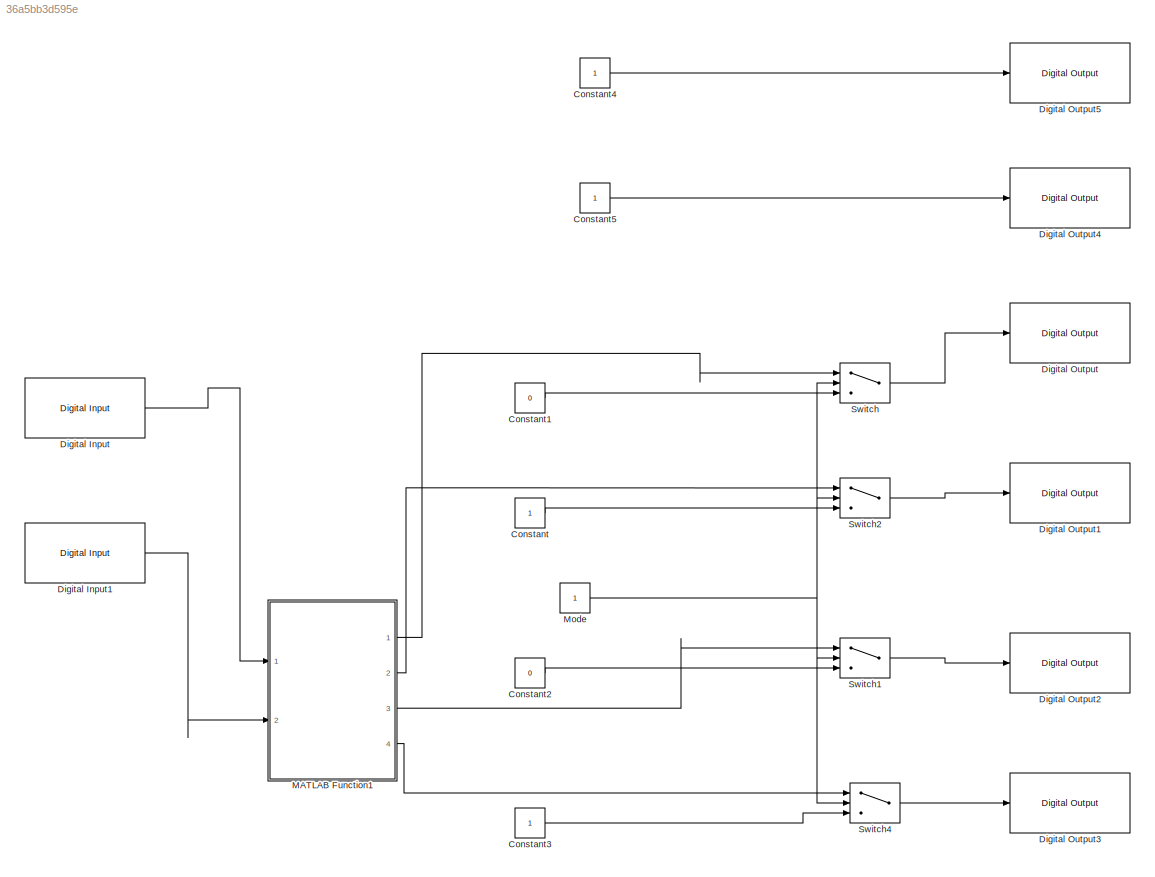
MODEL slx_36a5bb3d595e
KIND model
CONFIG AbsTol = auto
CONFIG FixedStep = 0.1
CONFIG MaxStep = auto
CONFIG MinStep = auto
CONFIG RelTol = 1e-3
CONFIG SampleTimeConstraint = Unconstrained
CONFIG Solver = FixedStepDiscrete
CONFIG SolverMode = Auto
CONFIG SolverName = FixedStepDiscrete
CONFIG StartTime = 0.0
CONFIG StopTime = inf
BLOCK [Constant] Constant
BLOCK [Constant] Constant1
  Value = 0
BLOCK [Constant] Constant2
  Value = 0
BLOCK [Constant] Constant3
BLOCK [Constant] Constant4
BLOCK [Constant] Constant5
BLOCK [Reference] Digital Input  REF=arduinolib/Digital Input
  Ports = [0, 1]
  SourceBlock = arduinolib/Digital Input
  SourceType = Arduino Digital Input
BLOCK [Reference] Digital Input1  REF=arduinolib/Digital Input
  Ports = [0, 1]
  SourceBlock = arduinolib/Digital Input
  SourceType = Arduino Digital Input
BLOCK [Reference] Digital Output  REF=arduinolib/Digital Output
  Ports = [1]
  SourceBlock = arduinolib/Digital Output
  SourceType = Arduino Digital Output
BLOCK [Reference] Digital Output1  REF=arduinolib/Digital Output
  Ports = [1]
  SourceBlock = arduinolib/Digital Output
  SourceType = Arduino Digital Output
BLOCK [Reference] Digital Output2  REF=arduinolib/Digital Output
  Ports = [1]
  SourceBlock = arduinolib/Digital Output
  SourceType = Arduino Digital Output
BLOCK [Reference] Digital Output3  REF=arduinolib/Digital Output
  Ports = [1]
  SourceBlock = arduinolib/Digital Output
  SourceType = Arduino Digital Output
BLOCK [Reference] Digital Output4  REF=arduinolib/Digital Output
  Ports = [1]
  SourceBlock = arduinolib/Digital Output
  SourceType = Arduino Digital Output
BLOCK [Reference] Digital Output5  REF=arduinolib/Digital Output
  Ports = [1]
  SourceBlock = arduinolib/Digital Output
  SourceType = Arduino Digital Output
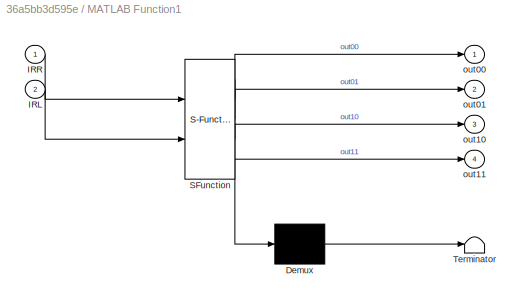
BLOCK [SubSystem] MATLAB Function1
  ErrorFcn = Stateflow.Translate.translate
  PermitHierarchicalResolution = ExplicitOnly
  Ports = [2, 4]
  RequestExecContextInheritance = off
  SFBlockType = MATLAB Function
  TreatAsAtomicUnit = on
  Variant = off
BLOCK [Demux] MATLAB Function1/ Demux 
  Outputs = 1
  Ports = [1, 1]
BLOCK [S-Function] MATLAB Function1/ SFunction 
  EnableBusSupport = on
  FunctionName = sf_sfun
  PortCounts = [2 5]
  Ports = [2, 5]
  SFunctionDeploymentMode = off
  Tag = Stateflow S-Function Project_MATLAB_diagram 1
BLOCK [Terminator] MATLAB Function1/ Terminator 
BLOCK [Inport] MATLAB Function1/IRL
  IconDisplay = Port number
  Port = 2
BLOCK [Inport] MATLAB Function1/IRR
  IconDisplay = Port number
BLOCK [Outport] MATLAB Function1/out00
  IconDisplay = Port number
BLOCK [Outport] MATLAB Function1/out01
  IconDisplay = Port number
  Port = 2
BLOCK [Outport] MATLAB Function1/out10
  IconDisplay = Port number
  Port = 3
BLOCK [Outport] MATLAB Function1/out11
  IconDisplay = Port number
  Port = 4
BLOCK [Constant] Mode
BLOCK [Switch] Switch
  Criteria = u2 ~= 0
  InputSameDT = off
  SaturateOnIntegerOverflow = off
BLOCK [Switch] Switch1
  Criteria = u2 ~= 0
  InputSameDT = off
  SaturateOnIntegerOverflow = off
BLOCK [Switch] Switch2
  Criteria = u2 ~= 0
  InputSameDT = off
  SaturateOnIntegerOverflow = off
BLOCK [Switch] Switch4
  Criteria = u2 ~= 0
  InputSameDT = off
  SaturateOnIntegerOverflow = off
LINE Constant1:1 -> Switch:3
LINE Constant2:1 -> Switch1:3
LINE Constant3:1 -> Switch4:3
LINE Constant4:1 -> Digital Output5:1
LINE Constant5:1 -> Digital Output4:1
LINE Constant:1 -> Switch2:3
LINE Digital Input1:1 -> MATLAB Function1:2
LINE Digital Input:1 -> MATLAB Function1:1
LINE MATLAB Function1:1 -> Switch:1
LINE MATLAB Function1:2 -> Switch2:1
LINE MATLAB Function1:3 -> Switch1:1
LINE MATLAB Function1:4 -> Switch4:1
NET Mode:1 -> Switch1:2, Switch2:2, Switch4:2, Switch:2
LINE Switch1:1 -> Digital Output2:1
LINE Switch2:1 -> Digital Output1:1
LINE Switch4:1 -> Digital Output3:1
LINE Switch:1 -> Digital Output:1
note: NET lines group one-source signal fan-out (src -> all destinations, sorted); 1:1 wires keep LINE
CHART MATLAB Function1 states=1 transitions=1
  STATE_LABEL 'eML_blk_kernel()'
  STATE_LABEL 'SCRIPT:\nfunction [out00,out01,out10,out11] = fcn(IRR,IRL)\n%#codegen\nif(IRR == 0 & IRL == 0)\n    out00 = 0;\n    out01 = 1;\n    out10 = 0;\n    out11 = 1;\nelseif(IRR == 1 & IRL == 0)\n    out00 = 0;\n    out01 = 0;\n    out10 = 0;\n    out11 = 1;\nelseif(IRR == 0 & IRL == 1)\n    out00 = 0;\n    out01 = 1;\n    out10 = 0;\n    out11 = 0;\nelseif(IRR == 1 & IRL == 1)\n    out00 = 0;\n    out01 = 0;\n    out10 = 0;...<+84ch>'
